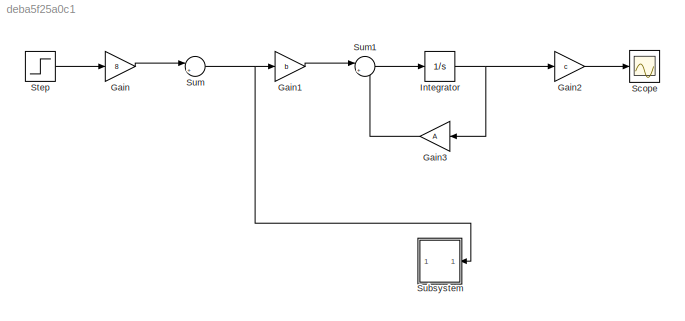
MODEL slx_deba5f25a0c1
KIND model
CONFIG AbsTol = auto
CONFIG EnableMultiTasking = off
CONFIG FixedStep = auto
CONFIG MaxStep = auto
CONFIG MinStep = auto
CONFIG RelTol = 1e-3
CONFIG SampleTimeConstraint = Unconstrained
CONFIG SolverName = VariableStepAuto
CONFIG StartTime = 0.0
CONFIG StopTime = 10.0
BLOCK [Gain] Gain
  Gain = 8
BLOCK [Gain] Gain1
  Gain = b
  Multiplication = Matrix(K*u)
BLOCK [Gain] Gain2
  Gain = c
  Multiplication = Matrix(K*u)
BLOCK [Gain] Gain3
  Gain = A
  Multiplication = Matrix(K*u)
  NameLocation = top
BLOCK [Integrator] Integrator
BLOCK [Scope] Scope
  Floating = off
  GraphicalSettings = {"GraphicalSettings":{"LegacySettings":true,"Style":{"Style":{"PlotType":"Auto"}}}}
  NumInputPorts = 1
  WasSavedAsWebScope = on
BLOCK [Step] Step
  SampleTime = 0
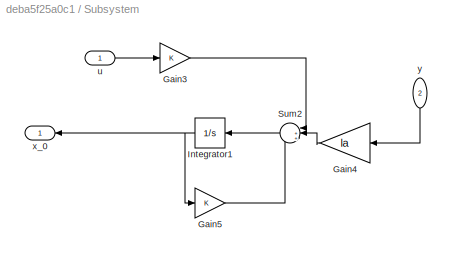
BLOCK [SubSystem] Subsystem
  NameLocation = top
BLOCK [Gain] Subsystem/Gain3
BLOCK [Gain] Subsystem/Gain4
  Gain = la
  Multiplication = Matrix(K*u)
  NameLocation = top
BLOCK [Gain] Subsystem/Gain5
BLOCK [Integrator] Subsystem/Integrator1
  NameLocation = top
BLOCK [Sum] Subsystem/Sum2
  Inputs = |++-
  NameLocation = top
BLOCK [Inport] Subsystem/u
BLOCK [Outport] Subsystem/x_0
  IconDisplay = Port number and signal name
  NameLocation = top
BLOCK [Inport] Subsystem/y
  IconDisplay = Port number and signal name
  NameLocation = left
  Port = 2
BLOCK [Sum] Sum
  Inputs = |++
BLOCK [Sum] Sum1
  Inputs = |++
LINE Gain1:1 -> Sum1:1
LINE Gain2:1 -> Scope:1
LINE Gain3:1 -> Sum1:2
LINE Gain:1 -> Sum:1
NET Integrator:1 -> Gain2:1, Gain3:1
LINE Step:1 -> Gain:1
LINE Subsystem/Gain3:1 -> Subsystem/Sum2:1
LINE Subsystem/Gain4:1 -> Subsystem/Sum2:2
LINE Subsystem/Gain5:1 -> Subsystem/Sum2:3
NET Subsystem/Integrator1:1 -> Subsystem/Gain5:1, Subsystem/x_0:1
LINE Subsystem/Sum2:1 -> Subsystem/Integrator1:1
LINE Subsystem/u:1 -> Subsystem/Gain3:1
LINE Subsystem/y:1 -> Subsystem/Gain4:1
LINE Sum1:1 -> Integrator:1
NET Sum:1 -> Gain1:1, Subsystem:1
note: NET lines group one-source signal fan-out (src -> all destinations, sorted); 1:1 wires keep LINE
